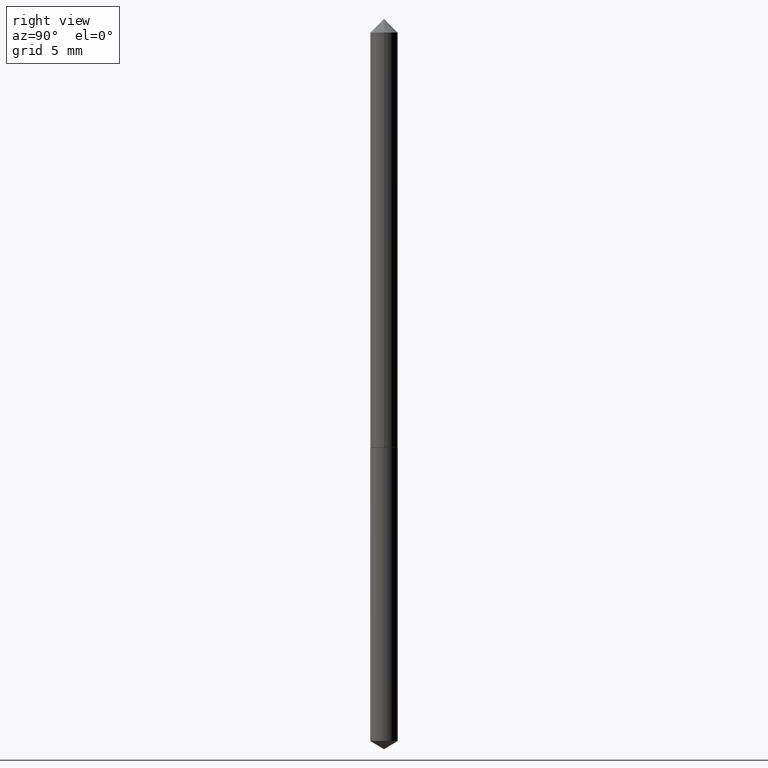
[diagram: clean part render]
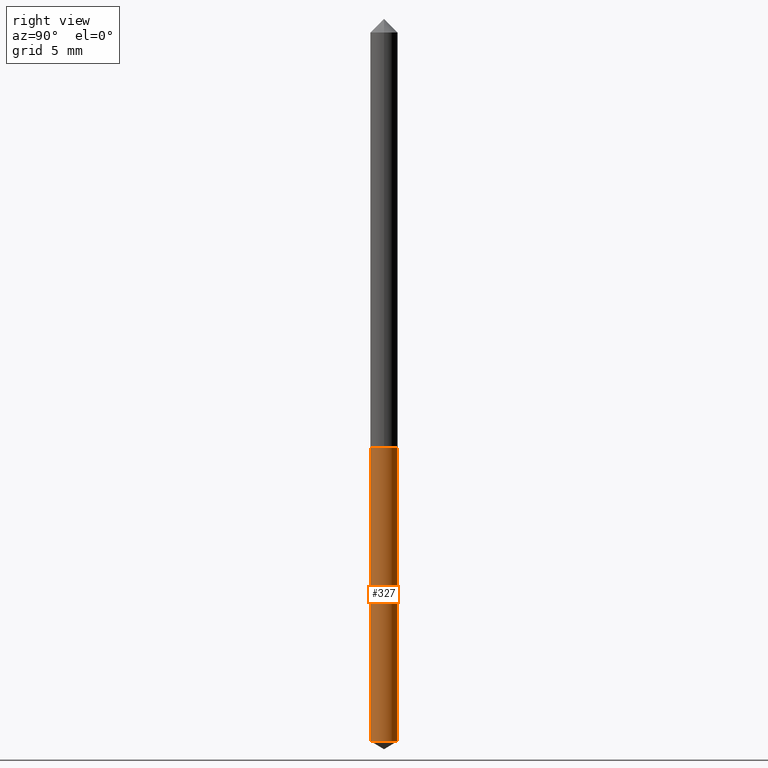
[diagram: same view with one face highlighted and labeled with its STEP entity id]
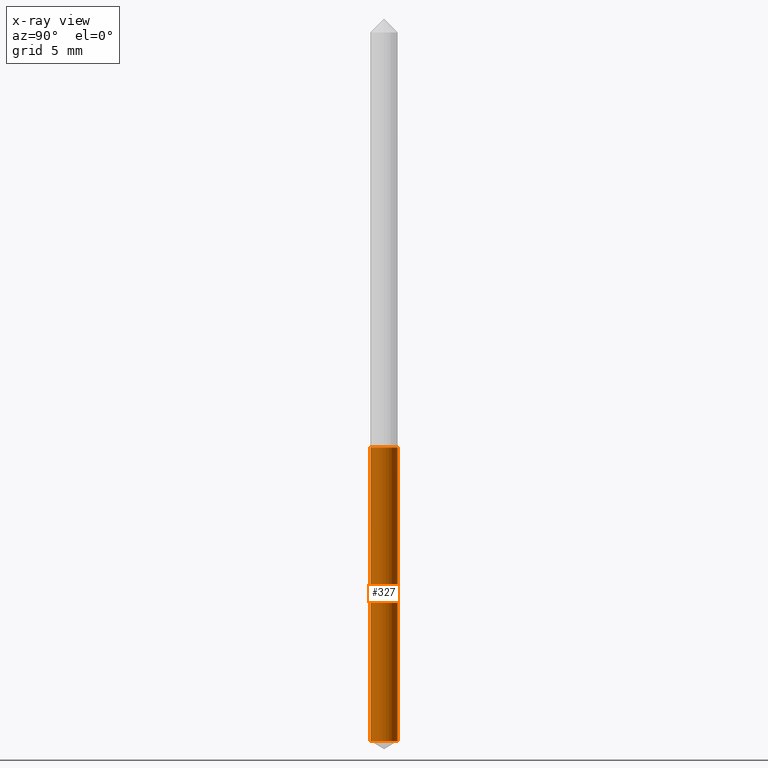
[diagram: x-ray of the same camera — body ghosted, the highlighted face saturated]
A machine part, right view. The second image highlights one B-rep face of the part: STEP entity #327.
The next image is the same camera in x-ray: the body ghosted, the highlighted face saturated — about 0% of this face is hidden behind the body in this view.
In plain terms, the highlighted cylindrical surface (edge-blend (fillet) strip) has radius 0.7506 mm, axis along (-0, 0, 1).
Its self-contained STEP definition (entity closure, byte-faithful):
#19 = CARTESIAN_POINT ( 'NONE',  ( 2.099653784171477406E-16, 0.02954999999999676982, -0.9252000000000002444 ) ) ;
#34 = VERTEX_POINT ( 'NONE', #351 ) ;
#46 = AXIS2_PLACEMENT_3D ( 'NONE', #355, #348, #73 ) ;
#55 = VERTEX_POINT ( 'NONE', #72 ) ;
#63 = EDGE_CURVE ( 'NONE', #55, #117, #203, .T. ) ;
#68 = DIRECTION ( 'NONE',  ( -2.445092826674046819E-29, 3.492019762902451132E-15, 1.000000000000000000 ) ) ;
#72 = CARTESIAN_POINT ( 'NONE',  ( -2.063465471256065363E-16, -0.02955000000000323340, -0.9252000000000000224 ) ) ;
#73 = DIRECTION ( 'NONE',  ( -6.982962677686265922E-15, -1.000000000000000000, 4.622416232934455843E-15 ) ) ;
#80 = CIRCLE ( 'NONE', #174, 0.02954999999999999988 ) ;
#99 = LINE ( 'NONE', #202, #314 ) ;
#104 = CARTESIAN_POINT ( 'NONE',  ( -2.063465471255910549E-16, -0.02955000000000543303, -1.557044568707735666 ) ) ;
#110 = CYLINDRICAL_SURFACE ( 'NONE', #255, 0.02954999999999999988 ) ;
#117 = VERTEX_POINT ( 'NONE', #19 ) ;
#120 = ORIENTED_EDGE ( 'NONE', *, *, #128, .T. ) ;
#128 = EDGE_CURVE ( 'NONE', #34, #117, #99, .T. ) ;
#136 = DIRECTION ( 'NONE',  ( -2.445092826674047099E-29, 3.492019762902450738E-15, 1.000000000000000000 ) ) ;
#143 = DIRECTION ( 'NONE',  ( -6.982962677686265922E-15, -1.000000000000000000, 4.622416232934455843E-15 ) ) ;
#145 = CARTESIAN_POINT ( 'NONE',  ( 2.262547739482488697E-29, -3.230318534697678788E-15, -0.9252000000000001334 ) ) ;
#161 = ORIENTED_EDGE ( 'NONE', *, *, #63, .F. ) ;
#162 = ORIENTED_EDGE ( 'NONE', *, *, #241, .T. ) ;
#166 = VECTOR ( 'NONE', #304, 39.37007874015748143 ) ;
#170 = VERTEX_POINT ( 'NONE', #104 ) ;
#174 = AXIS2_PLACEMENT_3D ( 'NONE', #185, #336, #302 ) ;
#185 = CARTESIAN_POINT ( 'NONE',  ( 3.807466362002729867E-29, -5.436732255707665702E-15, -1.557044568707735666 ) ) ;
#202 = CARTESIAN_POINT ( 'NONE',  ( 2.099653784171322099E-16, 0.02954999999999676982, -0.9252000000000002444 ) ) ;
#203 = CIRCLE ( 'NONE', #46, 0.02954999999999999988 ) ;
#205 = EDGE_LOOP ( 'NONE', ( #162, #120, #161, #285 ) ) ;
#237 = EDGE_CURVE ( 'NONE', #170, #55, #361, .T. ) ;
#241 = EDGE_CURVE ( 'NONE', #170, #34, #80, .T. ) ;
#255 = AXIS2_PLACEMENT_3D ( 'NONE', #145, #136, #143 ) ;
#285 = ORIENTED_EDGE ( 'NONE', *, *, #237, .F. ) ;
#299 = CARTESIAN_POINT ( 'NONE',  ( -2.063465471256065363E-16, -0.02955000000000323340, -0.9252000000000000224 ) ) ;
#302 = DIRECTION ( 'NONE',  ( -6.982962677686265922E-15, -1.000000000000000000, 0.000000000000000000 ) ) ;
#304 = DIRECTION ( 'NONE',  ( -2.445092826674046819E-29, 3.492019762902451132E-15, 1.000000000000000000 ) ) ;
#314 = VECTOR ( 'NONE', #68, 39.37007874015748143 ) ;
#327 = ADVANCED_FACE ( 'NONE', ( #364 ), #110, .T. ) ;
#336 = DIRECTION ( 'NONE',  ( -2.445092826674047099E-29, 3.492019762902450738E-15, 1.000000000000000000 ) ) ;
#348 = DIRECTION ( 'NONE',  ( -2.445092826674047099E-29, 3.492019762902450738E-15, 1.000000000000000000 ) ) ;
#351 = CARTESIAN_POINT ( 'NONE',  ( 2.099653784171475926E-16, 0.02954999999999455285, -1.557044568707735666 ) ) ;
#355 = CARTESIAN_POINT ( 'NONE',  ( 2.262547739482488697E-29, -3.230318534697678788E-15, -0.9252000000000001334 ) ) ;
#361 = LINE ( 'NONE', #299, #166 ) ;
#364 = FACE_OUTER_BOUND ( 'NONE', #205, .T. ) ;